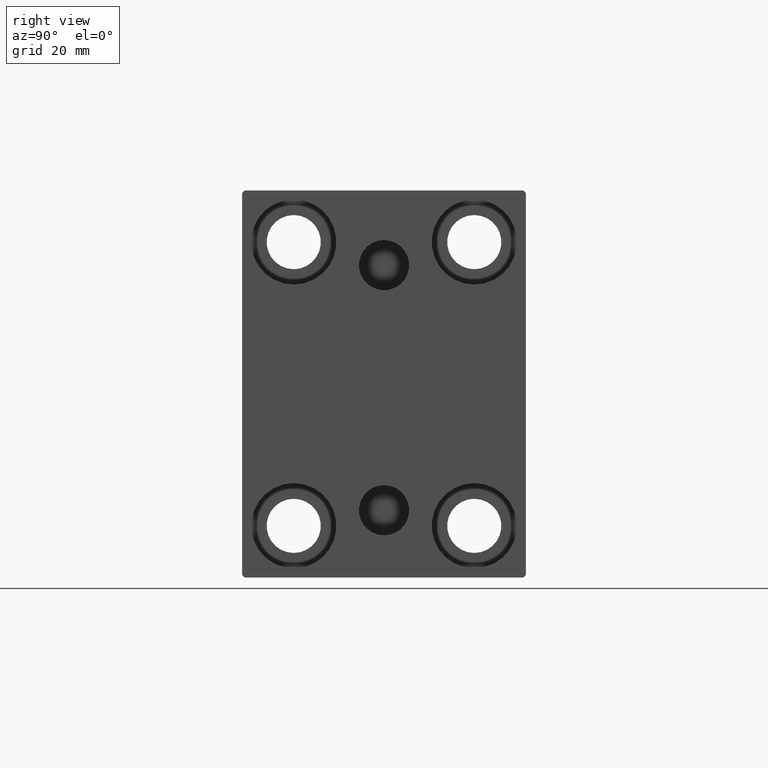
[diagram: clean part render]
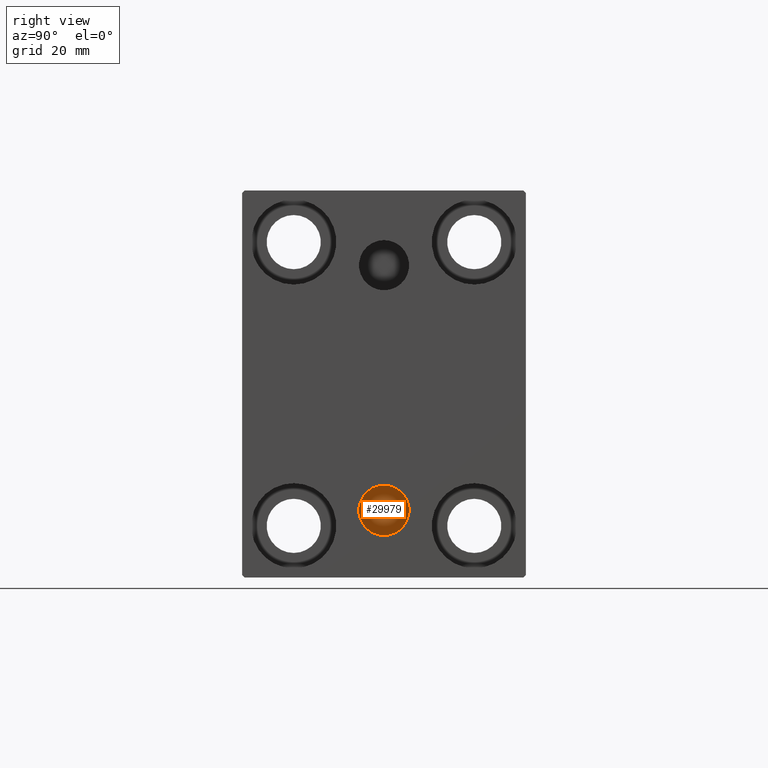
[diagram: same view with one face highlighted and labeled with its STEP entity id]
A machine part, right view. The second image highlights one B-rep face of the part: STEP entity #29979.
In plain terms, the highlighted planar face has unit normal (-1, 0, 0).
Its self-contained STEP definition (entity closure, byte-faithful):
#3187 = DIRECTION ( 'NONE',  ( -1.000000000000000000, -0.000000000000000000, 0.000000000000000000 ) ) ;
#3518 = ORIENTED_EDGE ( 'NONE', *, *, #11973, .T. ) ;
#4837 = AXIS2_PLACEMENT_3D ( 'NONE', #25200, #21899, #22113 ) ;
#7812 = CARTESIAN_POINT ( 'NONE',  ( 85.00000000000000000, 3.000384657911015074E-15, -24.49999999999999289 ) ) ;
#8817 = CIRCLE ( 'NONE', #15135, 4.859999999999999432 ) ;
#10015 = FACE_OUTER_BOUND ( 'NONE', #14550, .T. ) ;
#11973 = EDGE_CURVE ( 'NONE', #13601, #43202, #8817, .T. ) ;
#13601 = VERTEX_POINT ( 'NONE', #24974 ) ;
#14550 = EDGE_LOOP ( 'NONE', ( #23529, #3518 ) ) ;
#15135 = AXIS2_PLACEMENT_3D ( 'NONE', #7812, #27833, #20370 ) ;
#20370 = DIRECTION ( 'NONE',  ( 0.000000000000000000, 0.000000000000000000, 1.000000000000000000 ) ) ;
#21899 = DIRECTION ( 'NONE',  ( 1.000000000000000000, 0.000000000000000000, -0.000000000000000000 ) ) ;
#22113 = DIRECTION ( 'NONE',  ( 0.000000000000000000, 0.000000000000000000, 1.000000000000000000 ) ) ;
#22572 = AXIS2_PLACEMENT_3D ( 'NONE', #36888, #3187, #33589 ) ;
#23529 = ORIENTED_EDGE ( 'NONE', *, *, #27674, .T. ) ;
#23810 = CIRCLE ( 'NONE', #4837, 4.859999999999999432 ) ;
#24974 = CARTESIAN_POINT ( 'NONE',  ( 85.00000000000000000, 3.595563002296627957E-15, -19.63999999999999346 ) ) ;
#25200 = CARTESIAN_POINT ( 'NONE',  ( 85.00000000000000000, 3.000384657911015074E-15, -24.49999999999999289 ) ) ;
#27674 = EDGE_CURVE ( 'NONE', #43202, #13601, #23810, .T. ) ;
#27833 = DIRECTION ( 'NONE',  ( 1.000000000000000000, 0.000000000000000000, -0.000000000000000000 ) ) ;
#29979 = ADVANCED_FACE ( 'NONE', ( #10015 ), #33802, .F. ) ;
#33589 = DIRECTION ( 'NONE',  ( 0.000000000000000000, 0.000000000000000000, 1.000000000000000000 ) ) ;
#33802 = PLANE ( 'NONE',  #22572 ) ;
#36888 = CARTESIAN_POINT ( 'NONE',  ( 85.00000000000000000, 3.000384657911015074E-15, -24.49999999999999289 ) ) ;
#43202 = VERTEX_POINT ( 'NONE', #43450 ) ;
#43450 = CARTESIAN_POINT ( 'NONE',  ( 85.00000000000000000, 3.000384657911015074E-15, -29.35999999999999233 ) ) ;